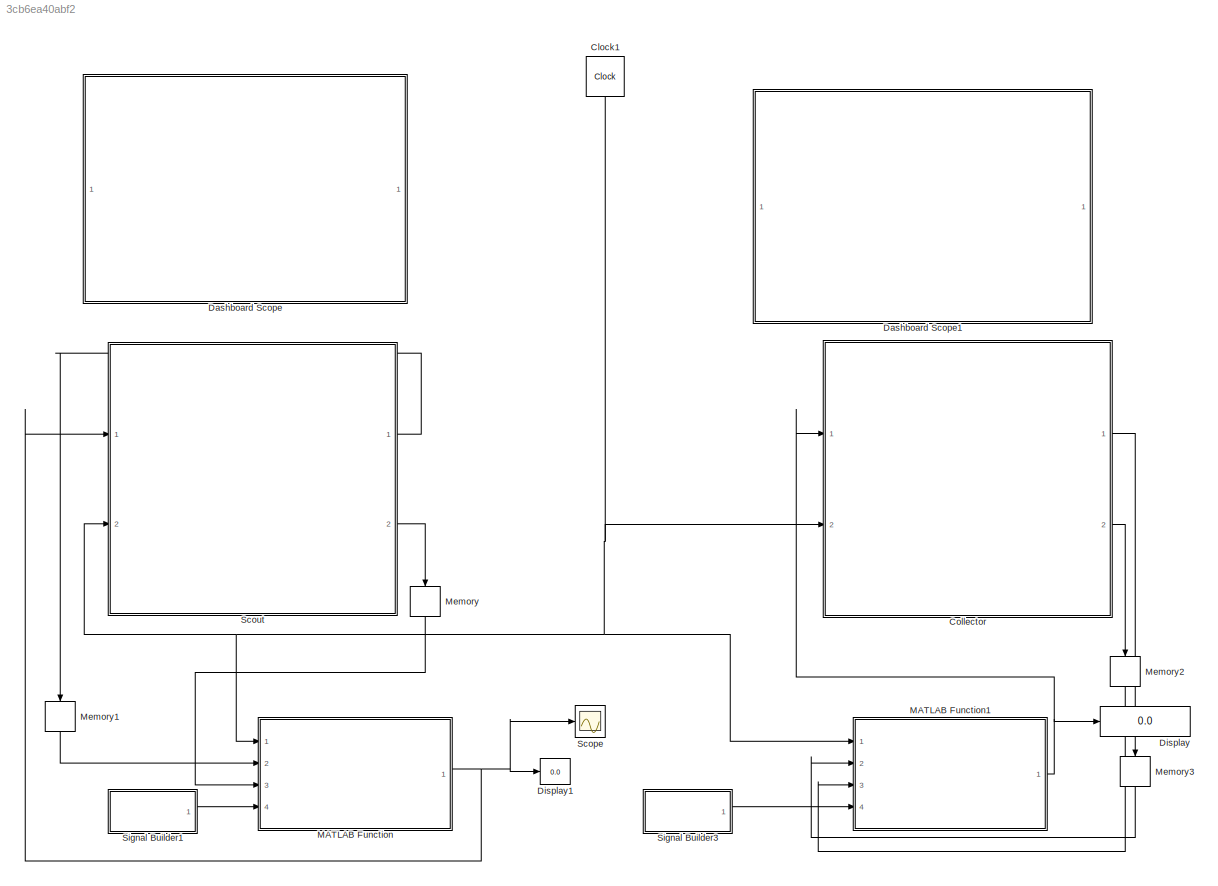
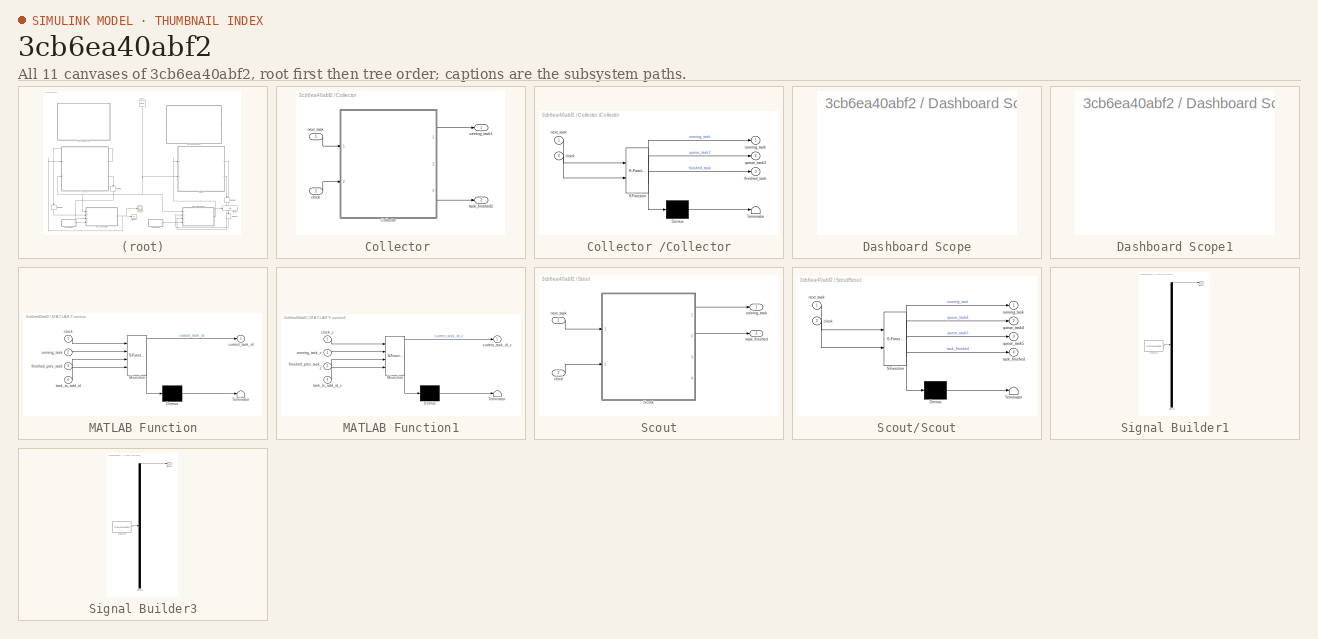
[diagram: thumbnail index - all 11 canvases of the model, root first then tree order]
MODEL slx_3cb6ea40abf2
KIND model
CONFIG AbsTol = auto
CONFIG EnableMultiTasking = off
CONFIG FixedStep = 0.01
CONFIG MaxStep = auto
CONFIG MinStep = auto
CONFIG RelTol = 1e-3
CONFIG SampleTimeConstraint = Unconstrained
CONFIG Solver = FixedStepAuto
CONFIG SolverName = FixedStepAuto
CONFIG StartTime = 0.0
CONFIG StopTime = 30
BLOCK [Clock] Clock1
  Decimation = 1
  DisplayTime = on
BLOCK [SubSystem] Collector 
  Ports = [2, 2]
  RequestExecContextInheritance = off
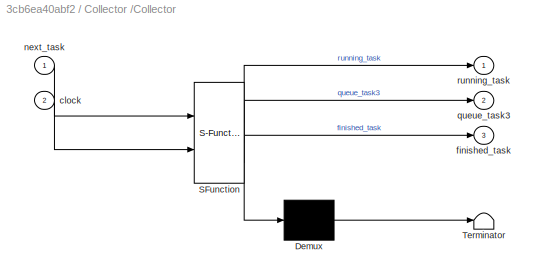
BLOCK [SubSystem] Collector /Collector
  ErrorFcn = Stateflow.Translate.translate
  PermitHierarchicalResolution = ExplicitOnly
  Ports = [2, 3]
  RequestExecContextInheritance = off
  SFBlockType = Chart
  TreatAsAtomicUnit = on
BLOCK [Demux] Collector /Collector/ Demux 
  Outputs = 1
  Ports = [1, 1]
BLOCK [S-Function] Collector /Collector/ SFunction 
  EnableBusSupport = on
  FunctionName = sf_sfun
  PortCounts = [2 4]
  Ports = [2, 4]
  SFcnIsStateOwnerBlock = off
  SFunctionDeploymentMode = off
  Tag = Stateflow S-Function tasks 4
BLOCK [Terminator] Collector /Collector/ Terminator 
BLOCK [Outport] Collector /Collector/ queue_task3
  IconDisplay = Port number
  Port = 2
BLOCK [Inport] Collector /Collector/clock
  IconDisplay = Port number
  Port = 2
BLOCK [Outport] Collector /Collector/finished_task
  IconDisplay = Port number
  Port = 3
BLOCK [Inport] Collector /Collector/next_task
  IconDisplay = Port number
BLOCK [Outport] Collector /Collector/running_task
  IconDisplay = Port number
BLOCK [Inport] Collector /clock 
  IconDisplay = Port number
  Port = 2
BLOCK [Inport] Collector /next_task
  IconDisplay = Port number
BLOCK [Outport] Collector /running_task1
  IconDisplay = Port number
BLOCK [Outport] Collector /task_finished1
  IconDisplay = Port number
  Port = 2
BLOCK [SubSystem] Dashboard Scope
  DialogController = hmiCreateDDGDialog
  IsWebBlock = on
  MaskHideContents = on
  Ports = []
  RequestExecContextInheritance = off
BLOCK [SubSystem] Dashboard Scope1
  DialogController = hmiCreateDDGDialog
  IsWebBlock = on
  MaskHideContents = on
  Ports = []
  RequestExecContextInheritance = off
BLOCK [Display] Display
  Decimation = 1
  Ports = [1]
BLOCK [Display] Display1
  Decimation = 1
  Ports = [1]
BLOCK [SubSystem] MATLAB Function
  ErrorFcn = Stateflow.Translate.translate
  PermitHierarchicalResolution = ExplicitOnly
  Ports = [4, 1]
  RequestExecContextInheritance = off
  SFBlockType = MATLAB Function
  TreatAsAtomicUnit = on
BLOCK [Demux] MATLAB Function/ Demux 
  Outputs = 1
  Ports = [1, 1]
BLOCK [S-Function] MATLAB Function/ SFunction 
  EnableBusSupport = on
  FunctionName = sf_sfun
  PortCounts = [4 2]
  Ports = [4, 2]
  SFcnIsStateOwnerBlock = off
  SFunctionDeploymentMode = off
  Tag = Stateflow S-Function tasks 1
BLOCK [Terminator] MATLAB Function/ Terminator 
BLOCK [Inport] MATLAB Function/clock
  IconDisplay = Port number
BLOCK [Outport] MATLAB Function/current_task_id
  IconDisplay = Port number
BLOCK [Inport] MATLAB Function/finished_prev_task
  IconDisplay = Port number
  Port = 3
BLOCK [Inport] MATLAB Function/running_task
  IconDisplay = Port number
  Port = 2
BLOCK [Inport] MATLAB Function/task_to_add_id
  IconDisplay = Port number
  Port = 4
BLOCK [SubSystem] MATLAB Function1
  ErrorFcn = Stateflow.Translate.translate
  PermitHierarchicalResolution = ExplicitOnly
  Ports = [4, 1]
  RequestExecContextInheritance = off
  SFBlockType = MATLAB Function
  TreatAsAtomicUnit = on
BLOCK [Demux] MATLAB Function1/ Demux 
  Outputs = 1
  Ports = [1, 1]
BLOCK [S-Function] MATLAB Function1/ SFunction 
  EnableBusSupport = on
  FunctionName = sf_sfun
  PortCounts = [4 2]
  Ports = [4, 2]
  SFcnIsStateOwnerBlock = off
  SFunctionDeploymentMode = off
  Tag = Stateflow S-Function tasks 3
BLOCK [Terminator] MATLAB Function1/ Terminator 
BLOCK [Inport] MATLAB Function1/clock_c
  IconDisplay = Port number
BLOCK [Outport] MATLAB Function1/current_task_id_c
  IconDisplay = Port number
BLOCK [Inport] MATLAB Function1/finished_prev_task_c
  IconDisplay = Port number
  Port = 3
BLOCK [Inport] MATLAB Function1/running_task_c
  IconDisplay = Port number
  Port = 2
BLOCK [Inport] MATLAB Function1/task_to_add_id_c
  IconDisplay = Port number
  Port = 4
BLOCK [Memory] Memory
BLOCK [Memory] Memory1
BLOCK [Memory] Memory2
BLOCK [Memory] Memory3
BLOCK [Scope] Scope
  Floating = off
  NumInputPorts = 1
  Ports = [1]
  ScopeSpecificationString = Simulink.scopes.TimeScopeBlockCfg('CurrentConfiguration', extmgr.ConfigurationSet(extmgr.Configuration('Core','General UI',true),extmgr.Configuration('Core','Source UI',true),extmgr.Configuration('Sources','WiredSimulink',true),extmgr.Configuration('Visuals','Time Domain',true,'SerializedDisplays',{struct('MinYLimReal','-0.375','MaxYLimReal','3.375','YLabelReal','','MinYLimMag','0.00000','MaxYLimM...<+1323ch>
BLOCK [SubSystem] Scout
  Ports = [2, 2]
  RequestExecContextInheritance = off
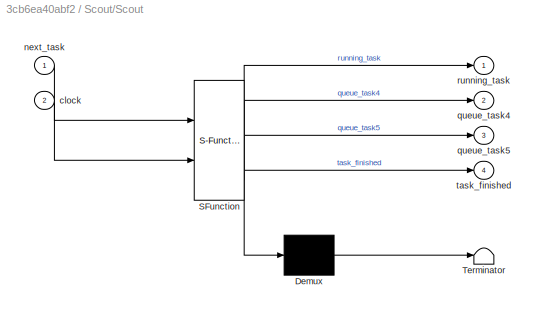
BLOCK [SubSystem] Scout/Scout
  ErrorFcn = Stateflow.Translate.translate
  PermitHierarchicalResolution = ExplicitOnly
  Ports = [2, 4]
  RequestExecContextInheritance = off
  SFBlockType = Chart
  TreatAsAtomicUnit = on
BLOCK [Demux] Scout/Scout/ Demux 
  Outputs = 1
  Ports = [1, 1]
BLOCK [S-Function] Scout/Scout/ SFunction 
  EnableBusSupport = on
  FunctionName = sf_sfun
  PortCounts = [2 5]
  Ports = [2, 5]
  SFcnIsStateOwnerBlock = off
  SFunctionDeploymentMode = off
  Tag = Stateflow S-Function tasks 2
BLOCK [Terminator] Scout/Scout/ Terminator 
BLOCK [Outport] Scout/Scout/ queue_task4
  IconDisplay = Port number
  Port = 2
BLOCK [Outport] Scout/Scout/ queue_task5
  IconDisplay = Port number
  Port = 3
BLOCK [Inport] Scout/Scout/clock
  IconDisplay = Port number
  Port = 2
BLOCK [Inport] Scout/Scout/next_task
  IconDisplay = Port number
BLOCK [Outport] Scout/Scout/running_task
  IconDisplay = Port number
BLOCK [Outport] Scout/Scout/task_finished
  IconDisplay = Port number
  Port = 4
BLOCK [Inport] Scout/clock 
  IconDisplay = Port number
  Port = 2
BLOCK [Inport] Scout/next_task
  IconDisplay = Port number
BLOCK [Outport] Scout/running_task
  IconDisplay = Port number
BLOCK [Outport] Scout/task_finished
  IconDisplay = Port number
  Port = 2
BLOCK [SubSystem] Signal Builder1
  ClipboardFcn = sigbuilder_block('clipboard');
  CloseFcn = sigbuilder_block('close');
  ContinueFcn = sigbuilder_block('continue');
  CopyFcn = sigbuilder_block('copy');
  DeleteFcn = sigbuilder_block('delete');
  LoadFcn = sigbuilder_block('load');
  MaskHideContents = on
  ModelCloseFcn = sigbuilder_block('modelClose');
  NameChangeFcn = sigbuilder_block('namechange');
  OpenFcn = sigbuilder_block('open',[327 53.4 550.8 361.2 ]);
  PauseFcn = sigbuilder_block('pause');
  Ports = [0, 1]
  PreSaveFcn = sigbuilder_block('preSave');
  RequestExecContextInheritance = off
  StartFcn = sigbuilder_block('start');
  StopFcn = sigbuilder_block('stop');
  Tag = STV Subsys
BLOCK [Demux] Signal Builder1/Demux
  Outputs = 1
  Ports = [1, 1]
  Tag = STV Demux
BLOCK [FromWorkspace] Signal Builder1/FromWs
  SampleTime = 0
  Tag = STV FromWs
  VariableName = tuvar
  ZeroCross = on
BLOCK [Outport] Signal Builder1/Signal 2
  IconDisplay = Port number
  Tag = STV Outport
BLOCK [SubSystem] Signal Builder3
  ClipboardFcn = sigbuilder_block('clipboard');
  CloseFcn = sigbuilder_block('close');
  ContinueFcn = sigbuilder_block('continue');
  CopyFcn = sigbuilder_block('copy');
  DeleteFcn = sigbuilder_block('delete');
  LoadFcn = sigbuilder_block('load');
  MaskHideContents = on
  ModelCloseFcn = sigbuilder_block('modelClose');
  NameChangeFcn = sigbuilder_block('namechange');
  OpenFcn = sigbuilder_block('open',[76.8 111.6 550.8 361.2 ]);
  PauseFcn = sigbuilder_block('pause');
  Ports = [0, 1]
  PreSaveFcn = sigbuilder_block('preSave');
  RequestExecContextInheritance = off
  StartFcn = sigbuilder_block('start');
  StopFcn = sigbuilder_block('stop');
  Tag = STV Subsys
BLOCK [Demux] Signal Builder3/Demux
  Outputs = 1
  Ports = [1, 1]
  Tag = STV Demux
BLOCK [FromWorkspace] Signal Builder3/FromWs
  SampleTime = 0
  Tag = STV FromWs
  VariableName = tuvar
  ZeroCross = on
BLOCK [Outport] Signal Builder3/Signal 2
  IconDisplay = Port number
  Tag = STV Outport
NET Clock1:1 -> Collector :2, MATLAB Function1:1, MATLAB Function:1, Scout:2
LINE Collector /Collector:1 -> Collector /running_task1:1
LINE Collector /Collector:3 -> Collector /task_finished1:1
LINE Collector /clock :1 -> Collector /Collector:2
LINE Collector /next_task:1 -> Collector /Collector:1
LINE Collector :1 -> Memory3:1
LINE Collector :2 -> Memory2:1
NET MATLAB Function1:1 -> Collector :1, Display:1
NET MATLAB Function:1 -> Display1:1, Scope:1, Scout:1
LINE Memory1:1 -> MATLAB Function:2
LINE Memory2:1 -> MATLAB Function1:3
LINE Memory3:1 -> MATLAB Function1:2
LINE Memory:1 -> MATLAB Function:3
LINE Scout/Scout:1 -> Scout/running_task:1
LINE Scout/Scout:3 -> Scout/task_finished:1
LINE Scout/clock :1 -> Scout/Scout:2
LINE Scout/next_task:1 -> Scout/Scout:1
LINE Scout:1 -> Memory1:1
LINE Scout:2 -> Memory:1
LINE Signal Builder1:1 -> MATLAB Function:4
LINE Signal Builder3:1 -> MATLAB Function1:4
note: NET lines group one-source signal fan-out (src -> all destinations, sorted); 1:1 wires keep LINE
CHART MATLAB Function states=1 transitions=1
  STATE_LABEL 'eML_blk_kernel()'
  STATE_LABEL "SCRIPT:\nfunction current_task_id = schedule_tasklist(clock, running_task, finished_prev_task, task_to_add_id)\ncurrent_task_id = 0;\n\ncoder.updateBuildInfo('addSourceFiles','schedule_task.c');\ncoder.cinclude('schedule_task.h');\n\nif (clock == 0)\n    coder.ceval('initialize_tasklist');\nend\n\ncoder.ceval('accept_task', task_to_add_id);\ncurrent_task = 0;\ncurrent_task = coder.ceval('next_task');\n\nif (fini...<+268ch>"
CHART Scout/Scout states=9 transitions=15
  STATE_LABEL 'Placeholder for real task data\n'
  STATE_LABEL 'Schedule\nex:\ntask_finished = 0;\n'
  STATE_LABEL 'Orientation_and_Drive\nen:\nrunning_task = 0;\ntimer = clock;\n'
  STATE_LABEL 'Generate_New_Goal\nen:\nrunning_task = 1;\ntimer = clock;\ncost = 12;'
  STATE_LABEL 'Communicate_Own_Position\nen:\nrunning_task = 2;\ntimer = clock;\ncost = 5;'
  STATE_LABEL 'Receive_Photo_Sensor_Readings\nen:\nrunning_task = 3;\ntimer = clock;\ncost = 10;'
  STATE_LABEL 'Handle_High_Readings\nen:\nrunning_task = 4;\ntimer = clock;\ncost = 4;'
  STATE_LABEL 'Communicate_Harvest_Coordinates\nen:\nrunning_task = 5;\ntimer = clock;\ncost = 5;'
  STATE_LABEL 'Receive_Referee_Communication\nen:\nrunning_task = 6;\ntimer = clock;\ncost = 7;'
CHART MATLAB Function1 states=1 transitions=1
  STATE_LABEL 'eML_blk_kernel()'
  STATE_LABEL "SCRIPT:\nfunction current_task_id_c = schedule_tasklist(clock_c, running_task_c, finished_prev_task_c, task_to_add_id_c)\ncurrent_task_id_c = 0;\n\ncoder.updateBuildInfo('addSourceFiles','schedule_task_c.c');\ncoder.cinclude('schedule_task_c.h');\n\nif (clock_c == 0)\n    coder.ceval('initialize_tasklist_c');\nend\n\ncoder.ceval('accept_task_c', task_to_add_id_c);\ncurrent_task_c = 0;\ncurrent_task_c = coder.c...<+322ch>"
CHART Collector
/Collector states=8 transitions=13
  STATE_LABEL 'Placeholder for real task data\n'
  STATE_LABEL 'Schedule\nex:\nfinished_task = 0;\n'
  STATE_LABEL 'Orientation_and_Drive\nen:\nrunning_task = 0;\ntimer = clock;\n'
  STATE_LABEL 'Generate_New_Goal\nen:\nrunning_task = 1;\ntimer = clock;\ncost = 12;'
  STATE_LABEL 'Receive_Proximity_Sensor_Readings\nen:\nrunning_task = 2;\ntimer = clock;\ncost = 8;'
  STATE_LABEL 'Handle_High_Readings\nen:\nrunning_task = 3;\ntimer = clock;\ncost = 10;'
  STATE_LABEL 'Receive_Harvest_Coordinates\nen:\nrunning_task = 4;\ntimer = clock;\ncost = 5;'
  STATE_LABEL 'Receive_Referee_Communication\nen:\nrunning_task = 5;\ntimer = clock;\ncost = 5;'
